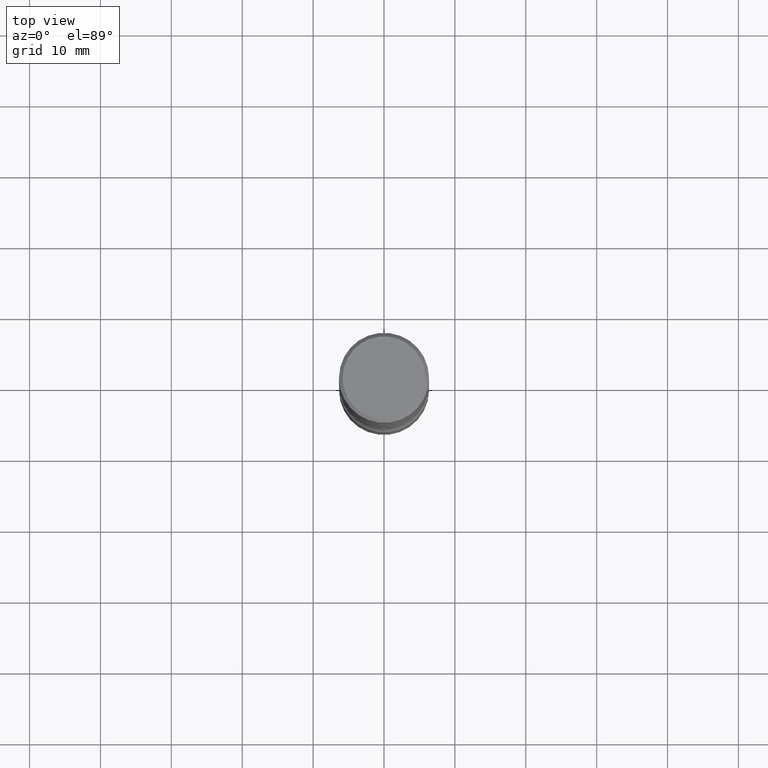
[diagram: clean part render]
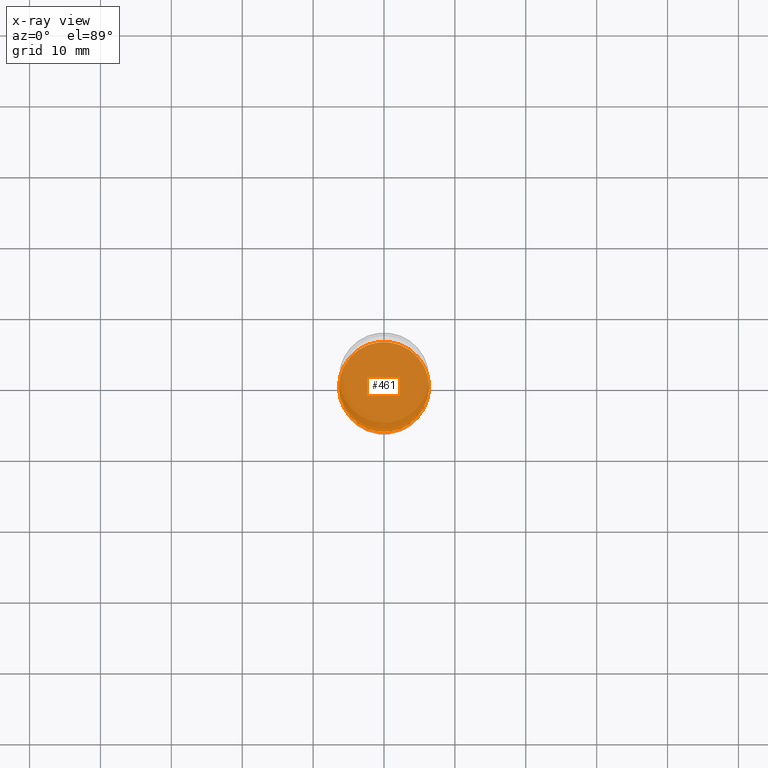
[diagram: x-ray — body ghosted, one internal face saturated and labeled with its STEP entity id]
A machine part, top view, then the same camera in x-ray: the body is ghosted and one INTERNAL B-rep face — a face not visible from any outside direction — is saturated and labeled: STEP entity #461.
In plain terms, the highlighted planar face has unit normal (0, -0, -1).
Its self-contained STEP definition (entity closure, byte-faithful):
#15 = EDGE_CURVE ( 'NONE', #246, #72, #141, .T. ) ;
#20 = DIRECTION ( 'NONE',  ( -2.445468806185136597E-29, 3.491481338843145583E-15, 1.000000000000000000 ) ) ;
#29 = CARTESIAN_POINT ( 'NONE',  ( 0.2500000000000002776, -1.222018468595100619E-14, -3.000000000000000444 ) ) ;
#53 = CARTESIAN_POINT ( 'NONE',  ( 7.336406418555409790E-29, -1.047444401652943635E-14, -3.000000000000000444 ) ) ;
#67 = DIRECTION ( 'NONE',  ( 2.438088387897960049E-29, -3.491481338843145188E-15, -1.000000000000000000 ) ) ;
#72 = VERTEX_POINT ( 'NONE', #29 ) ;
#114 = DIRECTION ( 'NONE',  ( -1.000000000000000000, 6.982962677686265922E-15, -4.876176775795935793E-29 ) ) ;
#141 = CIRCLE ( 'NONE', #317, 0.2500000000000002776 ) ;
#183 = EDGE_LOOP ( 'NONE', ( #312, #348 ) ) ;
#212 = CIRCLE ( 'NONE', #421, 0.2500000000000002776 ) ;
#235 = CARTESIAN_POINT ( 'NONE',  ( 7.336406418555409790E-29, -1.047444401652943635E-14, -3.000000000000000444 ) ) ;
#246 = VERTEX_POINT ( 'NONE', #541 ) ;
#258 = PLANE ( 'NONE',  #469 ) ;
#312 = ORIENTED_EDGE ( 'NONE', *, *, #422, .T. ) ;
#316 = DIRECTION ( 'NONE',  ( 1.000000000000000000, -6.982962677686270655E-15, 0.000000000000000000 ) ) ;
#317 = AXIS2_PLACEMENT_3D ( 'NONE', #323, #20, #316 ) ;
#323 = CARTESIAN_POINT ( 'NONE',  ( 7.336406418555409790E-29, -1.047444401652943635E-14, -3.000000000000000444 ) ) ;
#348 = ORIENTED_EDGE ( 'NONE', *, *, #15, .T. ) ;
#350 = FACE_OUTER_BOUND ( 'NONE', #183, .T. ) ;
#416 = DIRECTION ( 'NONE',  ( -2.445468806185136597E-29, 3.491481338843145583E-15, 1.000000000000000000 ) ) ;
#421 = AXIS2_PLACEMENT_3D ( 'NONE', #235, #416, #539 ) ;
#422 = EDGE_CURVE ( 'NONE', #72, #246, #212, .T. ) ;
#461 = ADVANCED_FACE ( 'NONE', ( #350 ), #258, .F. ) ;
#469 = AXIS2_PLACEMENT_3D ( 'NONE', #53, #67, #114 ) ;
#539 = DIRECTION ( 'NONE',  ( 1.000000000000000000, -6.982962677686270655E-15, 0.000000000000000000 ) ) ;
#541 = CARTESIAN_POINT ( 'NONE',  ( -0.2500000000000002776, -1.023433896622016898E-14, -3.000000000000000444 ) ) ;